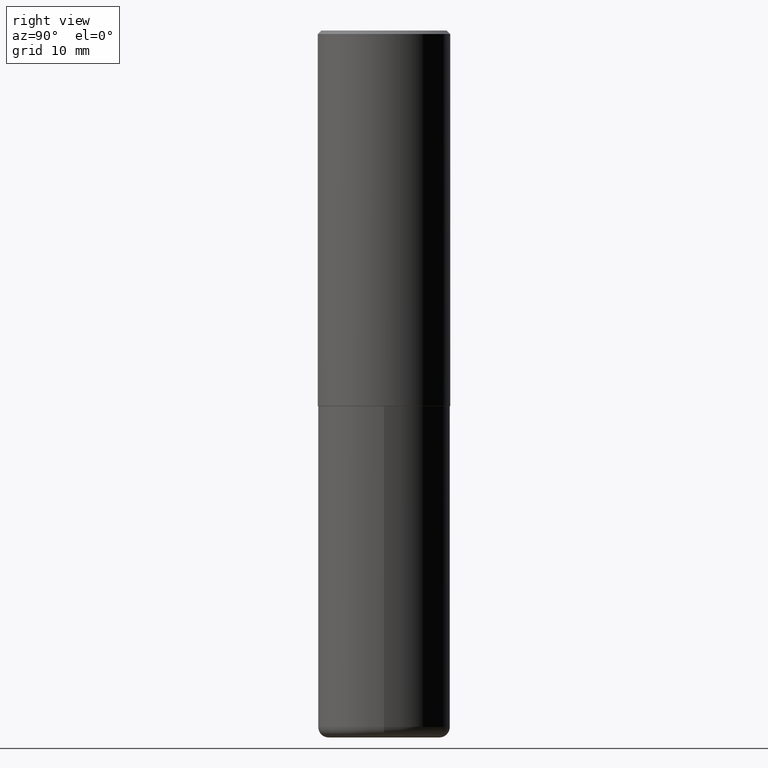
[diagram: clean part render]
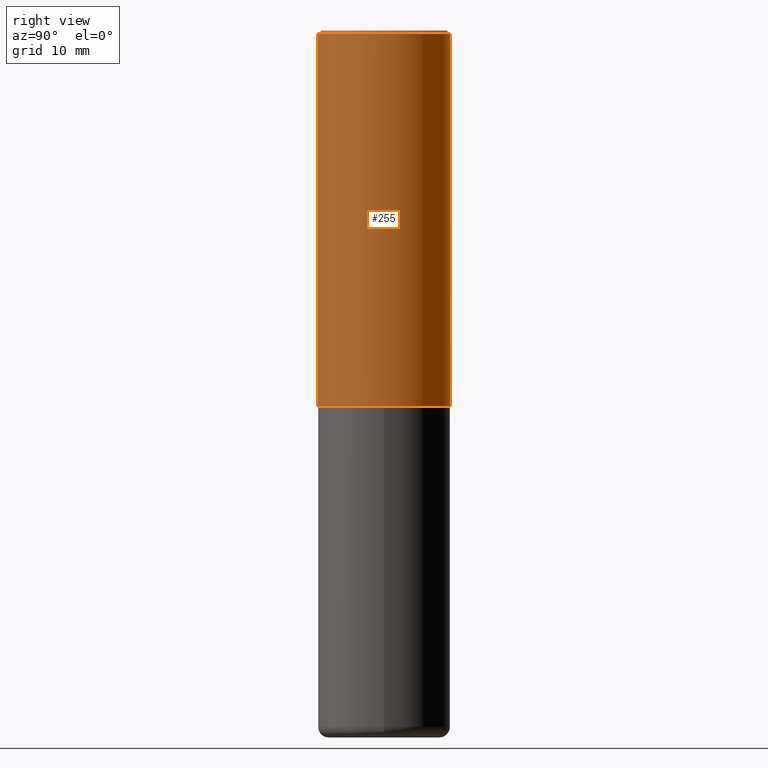
[diagram: same view with one face highlighted and labeled with its STEP entity id]
A machine part, right view. The second image highlights one B-rep face of the part: STEP entity #255.
In plain terms, the highlighted cylindrical surface (partial cylindrical patch) has radius 9.525 mm, axis along (-0, 0, 1).
Its self-contained STEP definition (entity closure, byte-faithful):
#8 = CIRCLE ( 'NONE', #277, 0.3750000000000001110 ) ;
#27 = CARTESIAN_POINT ( 'NONE',  ( 2.664535259100376880E-15, 0.3750000000000002220, -1.309772154642007612E-15 ) ) ;
#32 = CIRCLE ( 'NONE', #46, 0.3750000000000002776 ) ;
#46 = AXIS2_PLACEMENT_3D ( 'NONE', #210, #367, #294 ) ;
#49 = FACE_OUTER_BOUND ( 'NONE', #85, .T. ) ;
#84 = DIRECTION ( 'NONE',  ( -6.982962677686266711E-15, -1.000000000000000000, 3.492725745712018196E-15 ) ) ;
#85 = EDGE_LOOP ( 'NONE', ( #179, #242, #152, #135 ) ) ;
#91 = DIRECTION ( 'NONE',  ( -2.444599841513017620E-29, 3.492725745712017802E-15, 1.000000000000000000 ) ) ;
#110 = VERTEX_POINT ( 'NONE', #281 ) ;
#111 = CARTESIAN_POINT ( 'NONE',  ( 0.000000000000000000, 0.000000000000000000, 0.000000000000000000 ) ) ;
#132 = EDGE_CURVE ( 'NONE', #238, #299, #354, .T. ) ;
#135 = ORIENTED_EDGE ( 'NONE', *, *, #175, .F. ) ;
#142 = EDGE_CURVE ( 'NONE', #285, #299, #8, .T. ) ;
#152 = ORIENTED_EDGE ( 'NONE', *, *, #142, .F. ) ;
#157 = DIRECTION ( 'NONE',  ( -2.444599841513017620E-29, 3.492725745712018196E-15, 1.000000000000000000 ) ) ;
#166 = CARTESIAN_POINT ( 'NONE',  ( -2.572686749164324336E-15, -0.3750000000000001665, -0.01999999999999877570 ) ) ;
#173 = CARTESIAN_POINT ( 'NONE',  ( 2.618611004132351200E-15, 0.3750000000000000555, -0.02000000000000139513 ) ) ;
#175 = EDGE_CURVE ( 'NONE', #110, #285, #254, .T. ) ;
#179 = ORIENTED_EDGE ( 'NONE', *, *, #251, .T. ) ;
#203 = DIRECTION ( 'NONE',  ( -2.444599841513017620E-29, 3.492725745712017802E-15, 1.000000000000000000 ) ) ;
#210 = CARTESIAN_POINT ( 'NONE',  ( 5.192330063373648592E-29, -7.418549483892325607E-15, -2.123999999999999666 ) ) ;
#238 = VERTEX_POINT ( 'NONE', #404 ) ;
#242 = ORIENTED_EDGE ( 'NONE', *, *, #132, .T. ) ;
#248 = AXIS2_PLACEMENT_3D ( 'NONE', #111, #203, #84 ) ;
#251 = EDGE_CURVE ( 'NONE', #110, #238, #32, .T. ) ;
#254 = LINE ( 'NONE', #322, #414 ) ;
#255 = ADVANCED_FACE ( 'NONE', ( #49 ), #340, .T. ) ;
#277 = AXIS2_PLACEMENT_3D ( 'NONE', #379, #91, #313 ) ;
#280 = DIRECTION ( 'NONE',  ( -2.444599841513017620E-29, 3.492725745712018196E-15, 1.000000000000000000 ) ) ;
#281 = CARTESIAN_POINT ( 'NONE',  ( -2.618611004132299924E-15, -0.3750000000000077716, -2.123999999999998334 ) ) ;
#282 = VECTOR ( 'NONE', #280, 39.37007874015748143 ) ;
#285 = VERTEX_POINT ( 'NONE', #166 ) ;
#294 = DIRECTION ( 'NONE',  ( -6.982962677686266711E-15, -1.000000000000000000, 3.642463991552348591E-15 ) ) ;
#299 = VERTEX_POINT ( 'NONE', #173 ) ;
#313 = DIRECTION ( 'NONE',  ( -6.982962677686265922E-15, -1.000000000000000000, 3.494488891895535640E-15 ) ) ;
#322 = CARTESIAN_POINT ( 'NONE',  ( -2.618611004132351594E-15, -0.3750000000000002220, 1.309772154642007612E-15 ) ) ;
#340 = CYLINDRICAL_SURFACE ( 'NONE', #248, 0.3750000000000002220 ) ;
#354 = LINE ( 'NONE', #27, #282 ) ;
#367 = DIRECTION ( 'NONE',  ( -2.444599841513017620E-29, 3.492725745712017802E-15, 1.000000000000000000 ) ) ;
#379 = CARTESIAN_POINT ( 'NONE',  ( 4.889199683026055945E-31, -6.985451491424065481E-17, -0.02000000000000008715 ) ) ;
#404 = CARTESIAN_POINT ( 'NONE',  ( 2.664535259100402913E-15, 0.3749999999999928391, -2.124000000000000998 ) ) ;
#414 = VECTOR ( 'NONE', #157, 39.37007874015748143 ) ;